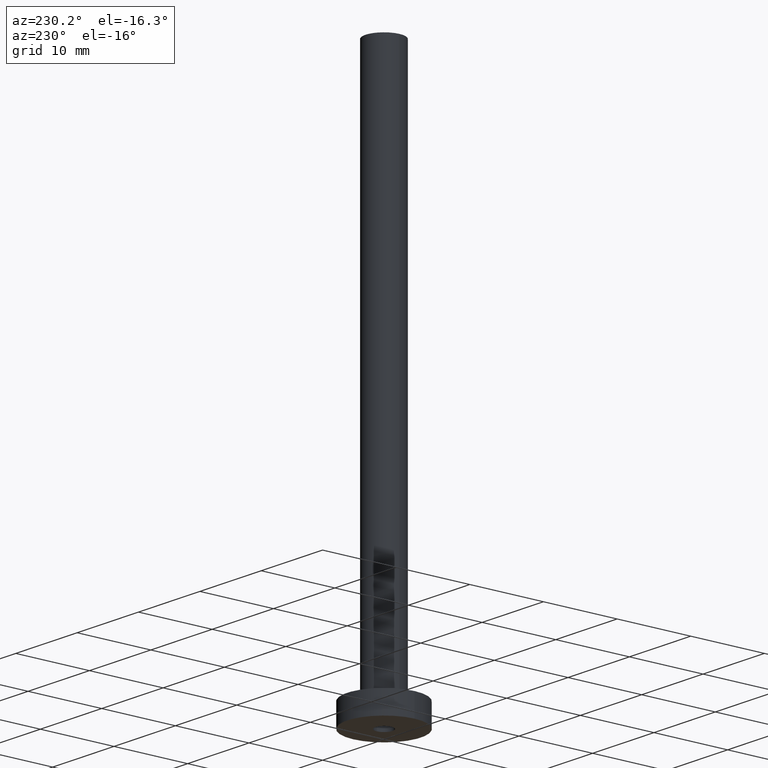
[diagram: clean part render]
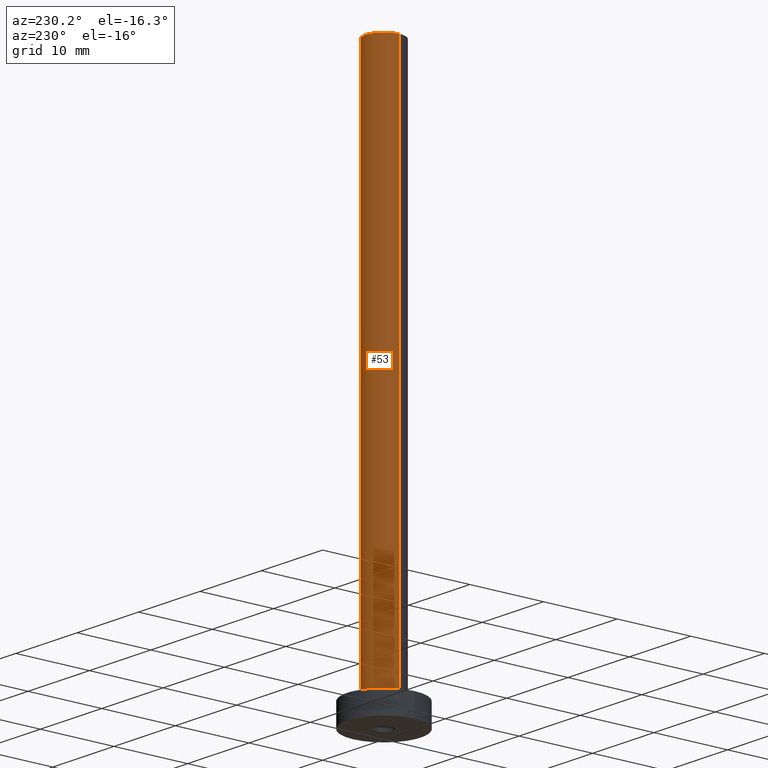
[diagram: same view with one face highlighted and labeled with its STEP entity id]
A machine part, auxiliary view. The second image highlights one B-rep face of the part: STEP entity #53.
In plain terms, the highlighted cylindrical surface (edge-blend (fillet) strip) has radius 2.5 mm, axis along (-0, -0, -1).
Its self-contained STEP definition (entity closure, byte-faithful):
#4 = LINE ( 'NONE', #353, #279 ) ;
#15 = ORIENTED_EDGE ( 'NONE', *, *, #437, .F. ) ;
#22 = VERTEX_POINT ( 'NONE', #382 ) ;
#29 = DIRECTION ( 'NONE',  ( -0.000000000000000000, -0.000000000000000000, -1.000000000000000000 ) ) ;
#37 = DIRECTION ( 'NONE',  ( 0.000000000000000000, 0.000000000000000000, 1.000000000000000000 ) ) ;
#38 = DIRECTION ( 'NONE',  ( -0.000000000000000000, -0.000000000000000000, -1.000000000000000000 ) ) ;
#44 = VECTOR ( 'NONE', #441, 1000.000000000000000 ) ;
#53 = ADVANCED_FACE ( 'NONE', ( #151 ), #287, .T. ) ;
#57 = LINE ( 'NONE', #411, #44 ) ;
#65 = AXIS2_PLACEMENT_3D ( 'NONE', #177, #38, #210 ) ;
#82 = EDGE_CURVE ( 'NONE', #22, #347, #4, .T. ) ;
#92 = CARTESIAN_POINT ( 'NONE',  ( -2.500000000000000000, 0.000000000000000000, 3.299999999999997158 ) ) ;
#110 = CARTESIAN_POINT ( 'NONE',  ( 0.000000000000000000, 0.000000000000000000, 3.299999999999997158 ) ) ;
#143 = CIRCLE ( 'NONE', #219, 2.500000000000000000 ) ;
#151 = FACE_OUTER_BOUND ( 'NONE', #275, .T. ) ;
#159 = CARTESIAN_POINT ( 'NONE',  ( 2.500000000000000000, 3.061616997868383141E-16, 3.299999999999997158 ) ) ;
#164 = ORIENTED_EDGE ( 'NONE', *, *, #286, .T. ) ;
#165 = DIRECTION ( 'NONE',  ( 0.000000000000000000, 0.000000000000000000, 1.000000000000000000 ) ) ;
#177 = CARTESIAN_POINT ( 'NONE',  ( 0.000000000000000000, 0.000000000000000000, 75.00000000000001421 ) ) ;
#210 = DIRECTION ( 'NONE',  ( -1.000000000000000000, 0.000000000000000000, 0.000000000000000000 ) ) ;
#219 = AXIS2_PLACEMENT_3D ( 'NONE', #110, #37, #262 ) ;
#262 = DIRECTION ( 'NONE',  ( 1.000000000000000000, 0.000000000000000000, 0.000000000000000000 ) ) ;
#275 = EDGE_LOOP ( 'NONE', ( #343, #306, #164, #15 ) ) ;
#279 = VECTOR ( 'NONE', #29, 1000.000000000000000 ) ;
#286 = EDGE_CURVE ( 'NONE', #347, #443, #143, .T. ) ;
#287 = CYLINDRICAL_SURFACE ( 'NONE', #65, 2.500000000000000000 ) ;
#301 = CARTESIAN_POINT ( 'NONE',  ( 0.000000000000000000, 0.000000000000000000, 75.00000000000001421 ) ) ;
#306 = ORIENTED_EDGE ( 'NONE', *, *, #82, .T. ) ;
#323 = CARTESIAN_POINT ( 'NONE',  ( -2.500000000000000000, 0.000000000000000000, 75.00000000000001421 ) ) ;
#340 = VERTEX_POINT ( 'NONE', #323 ) ;
#343 = ORIENTED_EDGE ( 'NONE', *, *, #432, .F. ) ;
#347 = VERTEX_POINT ( 'NONE', #159 ) ;
#353 = CARTESIAN_POINT ( 'NONE',  ( 2.500000000000000000, 3.061616997868383141E-16, 75.00000000000001421 ) ) ;
#382 = CARTESIAN_POINT ( 'NONE',  ( 2.500000000000000000, 3.061616997868383141E-16, 75.00000000000001421 ) ) ;
#394 = CIRCLE ( 'NONE', #412, 2.500000000000000000 ) ;
#411 = CARTESIAN_POINT ( 'NONE',  ( -2.500000000000000000, 0.000000000000000000, 75.00000000000001421 ) ) ;
#412 = AXIS2_PLACEMENT_3D ( 'NONE', #301, #165, #447 ) ;
#432 = EDGE_CURVE ( 'NONE', #22, #340, #394, .T. ) ;
#437 = EDGE_CURVE ( 'NONE', #340, #443, #57, .T. ) ;
#441 = DIRECTION ( 'NONE',  ( -0.000000000000000000, -0.000000000000000000, -1.000000000000000000 ) ) ;
#443 = VERTEX_POINT ( 'NONE', #92 ) ;
#447 = DIRECTION ( 'NONE',  ( 1.000000000000000000, 0.000000000000000000, 0.000000000000000000 ) ) ;